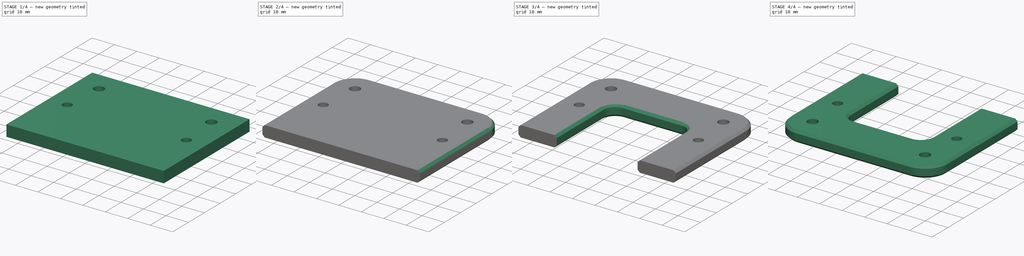
[diagram: build sequence overview — one tinted view per stage of 4, left to right]
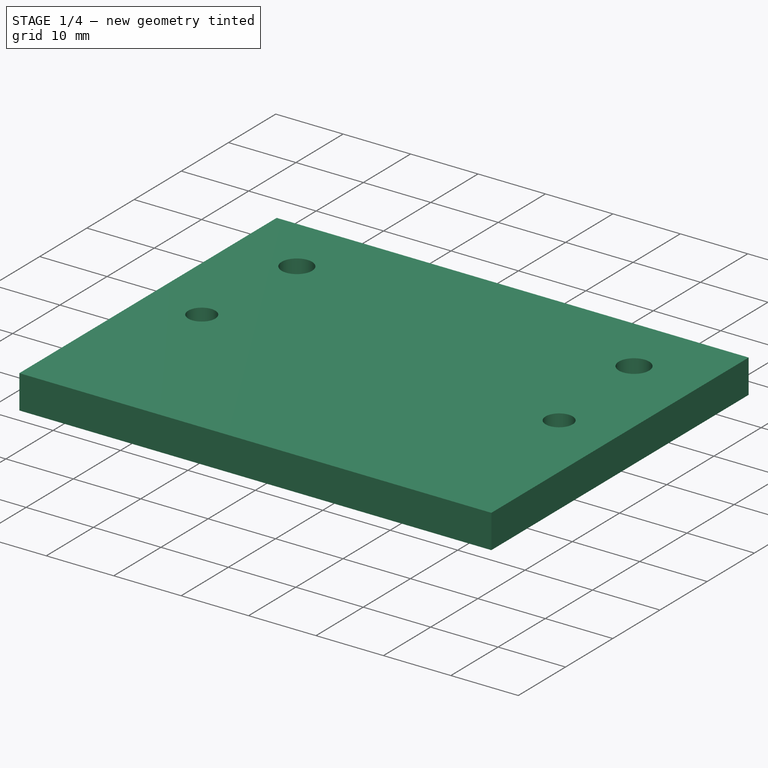
[diagram: stage 1 of 4 — iso view after this stage's code; geometry added in this stage tinted green]
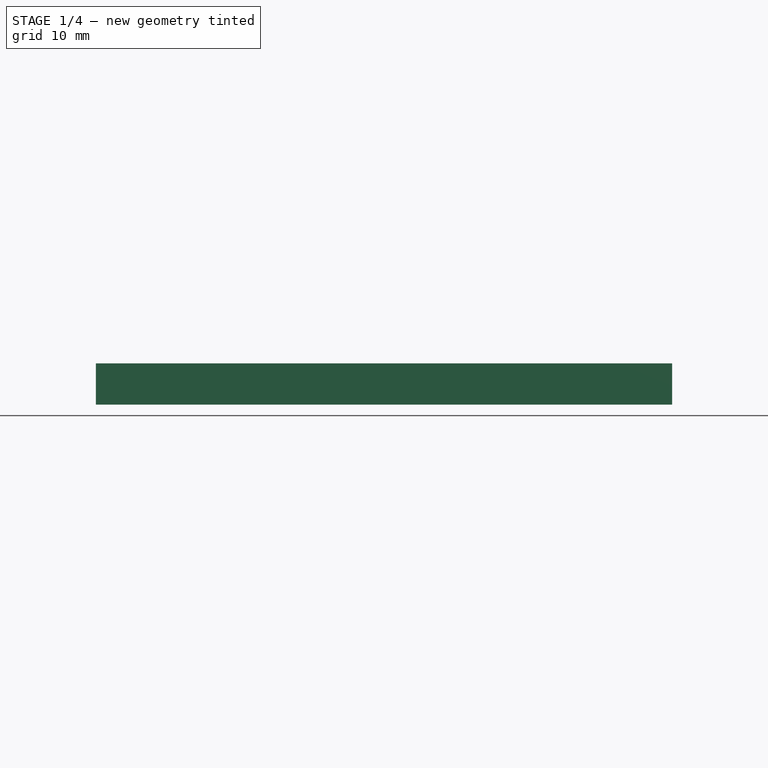
[diagram: stage 1 of 4 — front view after this stage's code; geometry added in this stage tinted green]
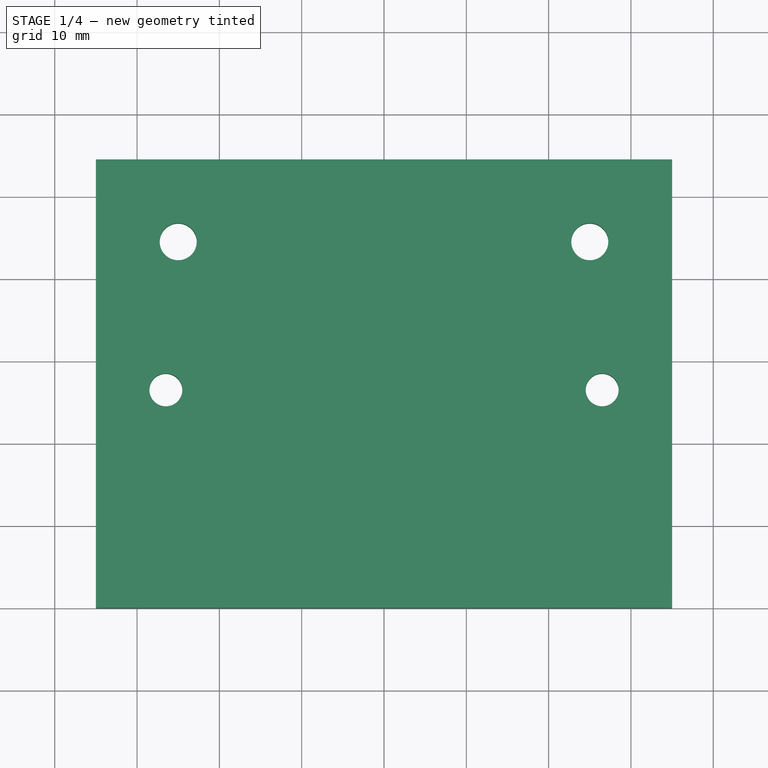
[diagram: stage 1 of 4 — top view after this stage's code; geometry added in this stage tinted green]
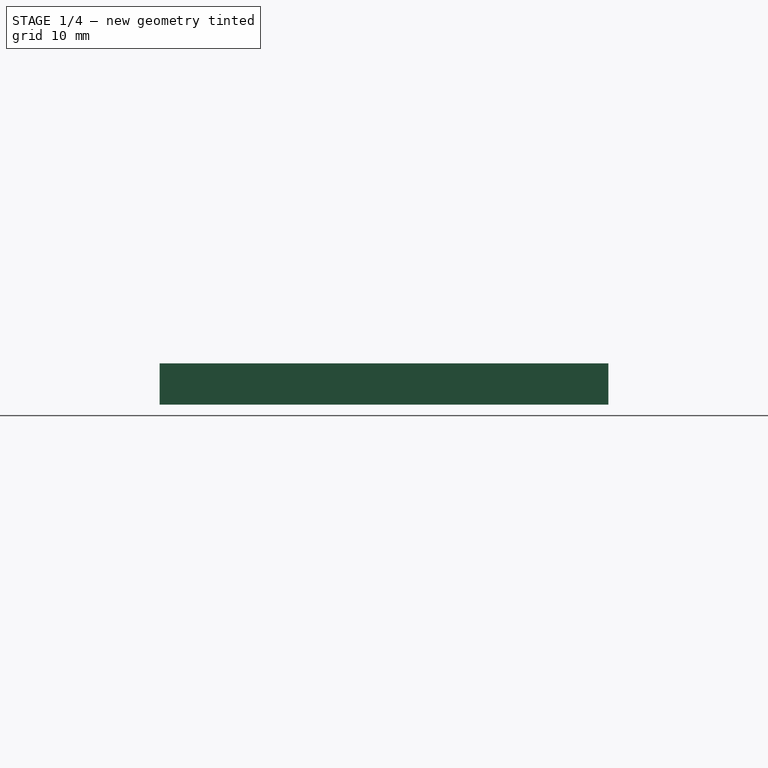
[diagram: stage 1 of 4 — right view after this stage's code; geometry added in this stage tinted green]
FCSTD DOCUMENT  (FreeCAD 0.21R33694 (Git))
Label: Hokuyo-Mount
License: All rights reserved
LicenseURL: http://en.wikipedia.org/wiki/All_rights_reserved
objects: Sketcher::SketchObject×3, PartDesign::Pocket×2, PartDesign::Fillet×2, PartDesign::Chamfer×2, PartDesign::Pad×1, PartDesign::Body×1, PartDesign::FeatureBase×1, Part::Mirroring×1, App::Part×1
note: 20 computed .brp shape members not serialized (recipe doc carries the construction recipe); baked Part::Feature solids carry a one-line shape summary decoded from their .brp

FEATURE [Sketcher::SketchObject] Sketch
  FullyConstrained = true
  MapMode = 5
  Support = -> [XY_Plane001]
  sketch-geometry (13):
    g0: LineSegment StartX=0 StartY=0 StartZ=0 EndX=35 EndY=0 EndZ=0
    g1: LineSegment StartX=35 StartY=0 StartZ=0 EndX=35 EndY=54.5 EndZ=0
    g2: LineSegment StartX=35 StartY=54.5 StartZ=0 EndX=-35 EndY=54.5 EndZ=0
    g3: LineSegment StartX=-35 StartY=54.5 StartZ=0 EndX=-35 EndY=0 EndZ=0
    g4: LineSegment StartX=-35 StartY=0 StartZ=0 EndX=0 EndY=0 EndZ=0
    g5: LineSegment StartX=-25 StartY=1.1e-15 StartZ=0 EndX=-25 EndY=44.5 EndZ=0
    g6: LineSegment StartX=25 StartY=-1.7e-15 StartZ=0 EndX=25 EndY=44.5 EndZ=0
    g7: LineSegment StartX=25 StartY=44.5 StartZ=0 EndX=25 EndY=54.5 EndZ=0
    g8: LineSegment StartX=25 StartY=44.5 StartZ=0 EndX=35 EndY=44.5 EndZ=0
    g9: LineSegment StartX=-25 StartY=44.5 StartZ=0 EndX=-25 EndY=54.5 EndZ=0
    g10: LineSegment StartX=-25 StartY=44.5 StartZ=0 EndX=-35 EndY=44.5 EndZ=0
    g11: Circle CenterX=-25 CenterY=44.5 CenterZ=0 NormalX=0 NormalY=0 NormalZ=1 AngleXU=0 Radius=2.25
    g12: Circle CenterX=25 CenterY=44.5 CenterZ=0 NormalX=0 NormalY=0 NormalZ=1 AngleXU=0 Radius=2.25
  constraints (38):
    c: Coincident(g-1,g0)
    c: PointOnObject(g0,g-1)
    c: Coincident(g0,g1)
    c: Vertical(g1)
    c: Coincident(g1,g2)
    c: Horizontal(g2)
    c: Coincident(g2,g3)
    c: PointOnObject(g3,g-1)
    c: Vertical(g3)
    c: Coincident(g3,g4)
    c: Coincident(g4,g0)
    c: PointOnObject(g5,g4)
    c: Vertical(g5)
    c: PointOnObject(g6,g0)
    c: Vertical(g6)
    c: Coincident(g7,g6)
    c: PointOnObject(g7,g2)
    c: Vertical(g7)
    c: Coincident(g8,g6)
    c: PointOnObject(g8,g1)
    c: Horizontal(g8)
    c: Coincident(g9,g5)
    c: PointOnObject(g9,g2)
    c: Coincident(g10,g5)
    c: PointOnObject(g10,g3)
    c: Horizontal(g10)
    c: Vertical(g9)
    c: Equal(g8,g10)
    c: Equal(g9,g7)
    c: Distance(g6) = 44.5
    c: Distance(g7) = 10
    c: Distance(g8) = 10
    c: Coincident(g11,g5)
    c: Coincident(g12,g6)
    c: Equal(g11,g12)
    c: Diameter(g12) = 4.5
    c: Equal(g4,g0)
    c: Distance(g2) = 70
FEATURE [PartDesign::Pad] Pad
  Direction = (1,1,1)
  Length = 5
  Length2 = 100
  Profile = -> Sketch
  Type = 0
FEATURE [Sketcher::SketchObject] Sketch001
  FullyConstrained = true
  MapMode = 5
  Placement = pos=(0,0,5) rot=(0,0,1;0rad)
  Support = -> [Pad]
  sketch-geometry (6):
    g0: LineSegment StartX=26.5 StartY=0 StartZ=0 EndX=26.5 EndY=26.5 EndZ=0
    g1: LineSegment StartX=26.5 StartY=26.5 StartZ=0 EndX=0 EndY=26.5 EndZ=0
    g2: LineSegment StartX=0 StartY=26.5 StartZ=0 EndX=-26.5 EndY=26.5 EndZ=0
    g3: LineSegment StartX=-26.5 StartY=26.5 StartZ=0 EndX=-26.5 EndY=0 EndZ=0
    g4: Circle CenterX=-26.5 CenterY=26.5 CenterZ=0 NormalX=0 NormalY=0 NormalZ=1 AngleXU=0 Radius=2
    g5: Circle CenterX=26.5 CenterY=26.5 CenterZ=0 NormalX=0 NormalY=0 NormalZ=1 AngleXU=0 Radius=2
  constraints (17):
    c: PointOnObject(g0,g-1)
    c: Vertical(g0)
    c: Coincident(g0,g1)
    c: PointOnObject(g1,g-2)
    c: Horizontal(g1)
    c: Coincident(g1,g2)
    c: Horizontal(g2)
    c: Coincident(g2,g3)
    c: PointOnObject(g3,g-1)
    c: Vertical(g3)
    c: Equal(g1,g2)
    c: Equal(g2,g3)
    c: Distance(g0) = 26.5
    c: Coincident(g4,g2)
    c: Coincident(g5,g0)
    c: Equal(g4,g5)
    c: Diameter(g5) = 4
FEATURE [PartDesign::Pocket] Pocket
  BaseFeature = -> Pad
  Direction = (1,1,1)
  Length = 5
  Length2 = 100
  Profile = -> Sketch001
  Type = 1
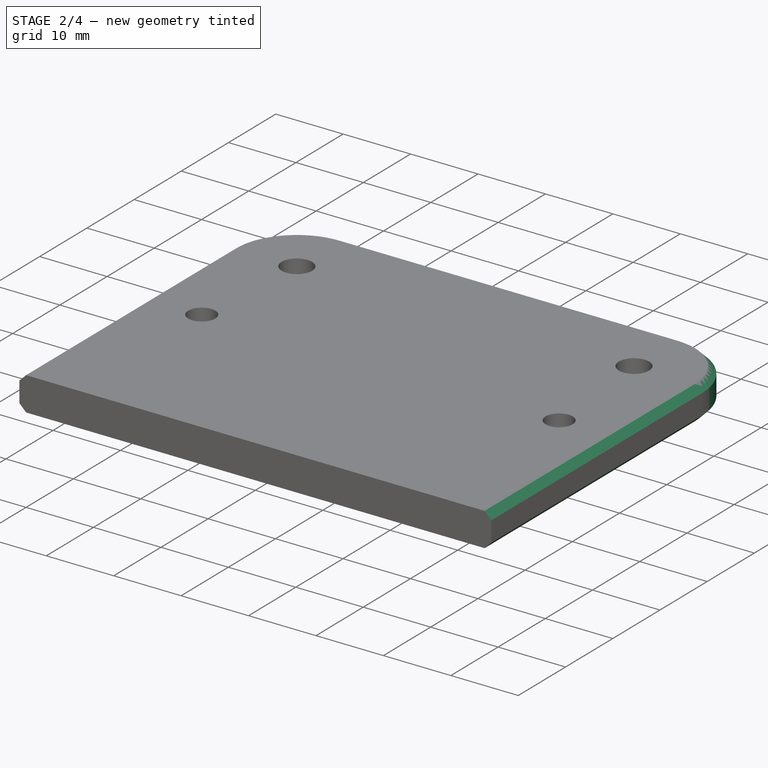
[diagram: stage 2 of 4 — iso view after this stage's code; geometry added in this stage tinted green]
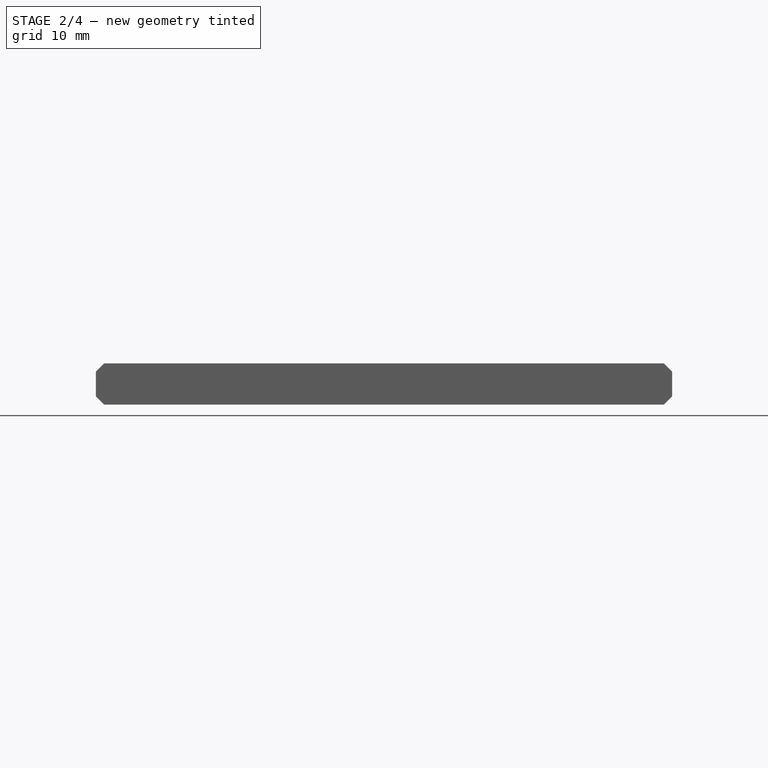
[diagram: stage 2 of 4 — front view after this stage's code; geometry added in this stage tinted green]
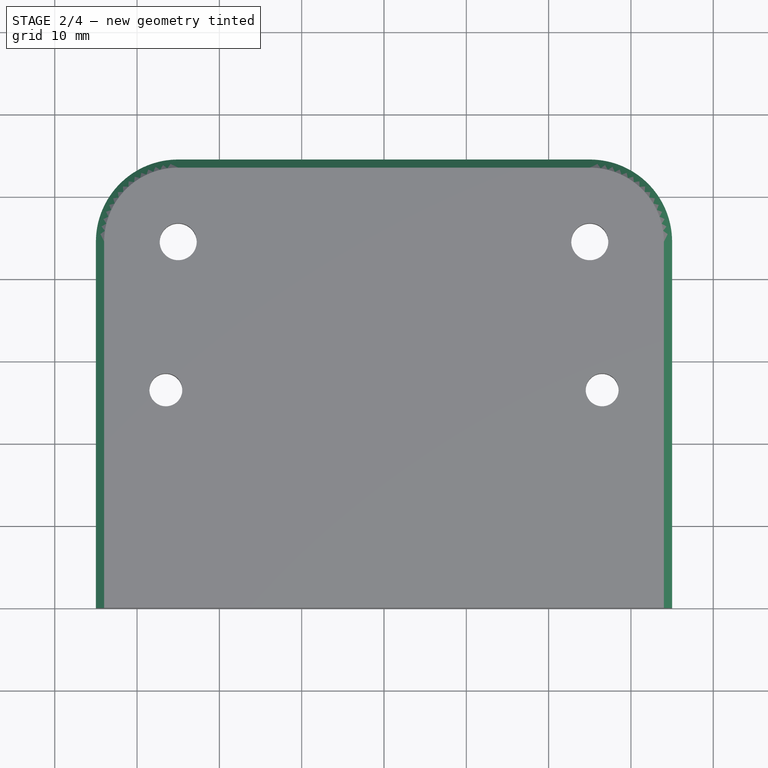
[diagram: stage 2 of 4 — top view after this stage's code; geometry added in this stage tinted green]
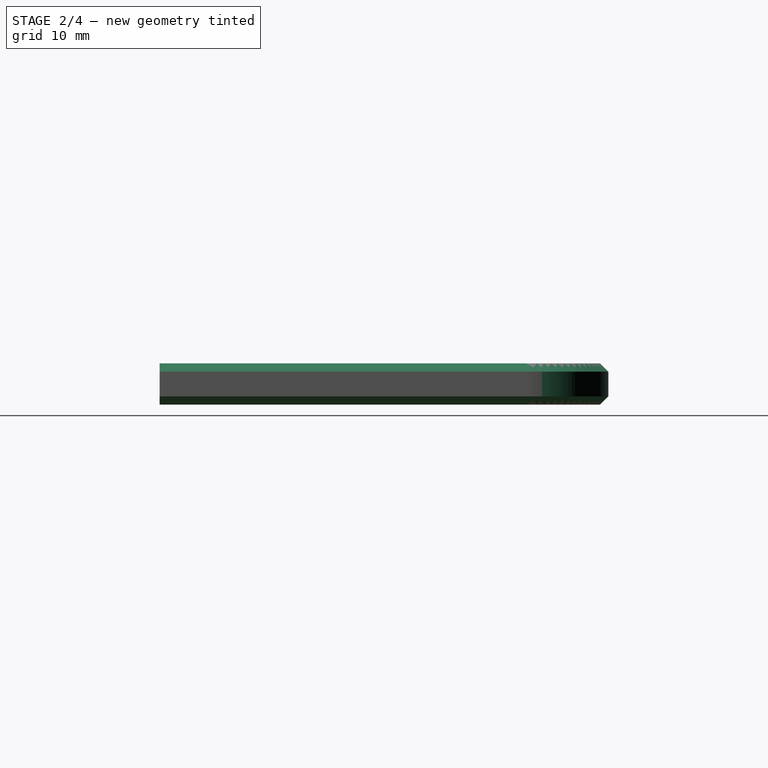
[diagram: stage 2 of 4 — right view after this stage's code; geometry added in this stage tinted green]
FEATURE [PartDesign::Fillet] Fillet
  Base = -> Pocket [Edge8,Edge23]
  BaseFeature = -> Pocket
  Radius = 10
  SupportTransform = false
  UseAllEdges = false
FEATURE [PartDesign::Chamfer] Chamfer
  Angle = 45
  Base = -> Fillet [Edge19,Edge7]
  BaseFeature = -> Fillet
  ChamferType = 0
  FlipDirection = false
  Size = 1
  Size2 = 1
  SupportTransform = false
  UseAllEdges = false
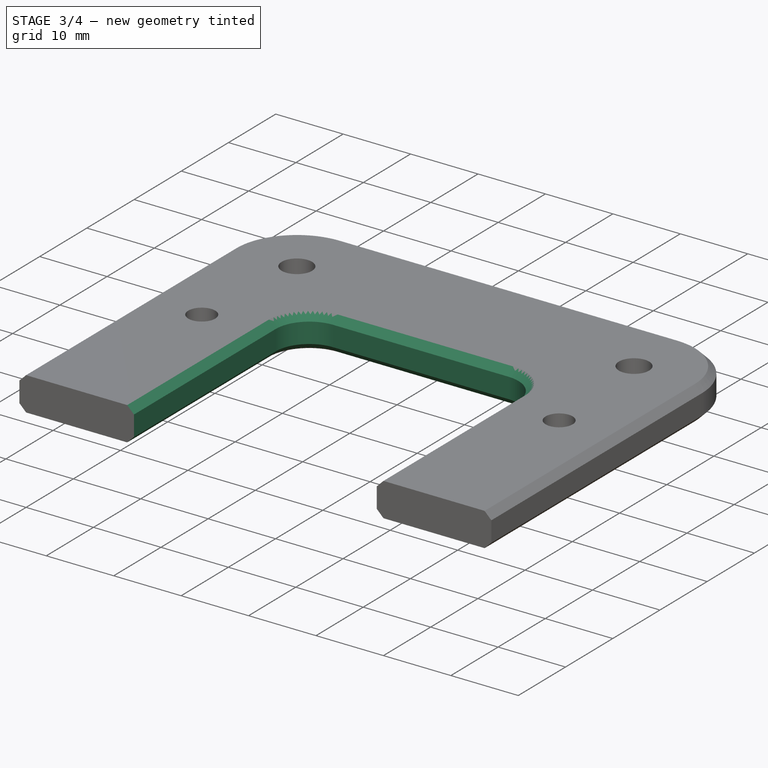
[diagram: stage 3 of 4 — iso view after this stage's code; geometry added in this stage tinted green]
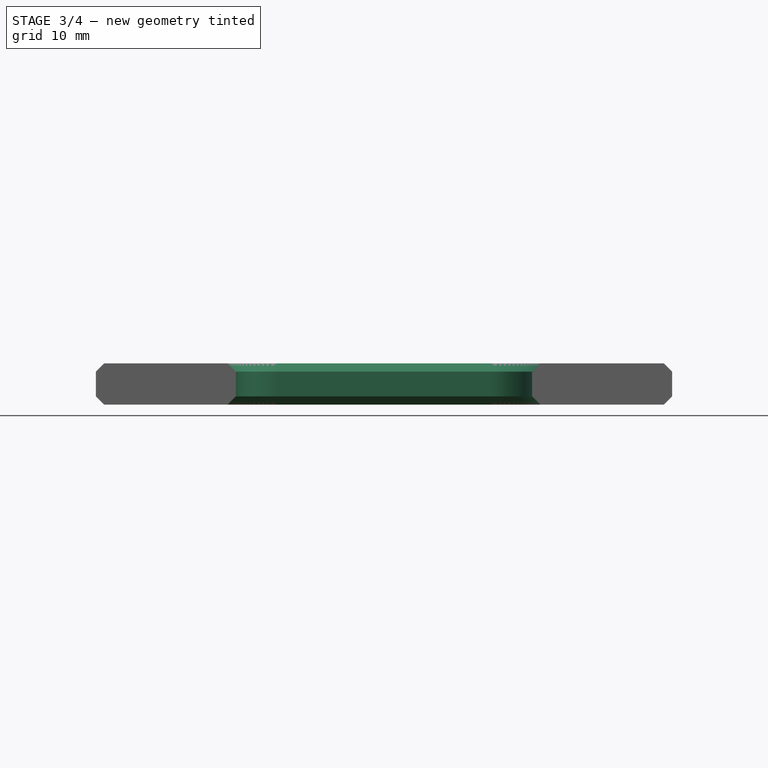
[diagram: stage 3 of 4 — front view after this stage's code; geometry added in this stage tinted green]
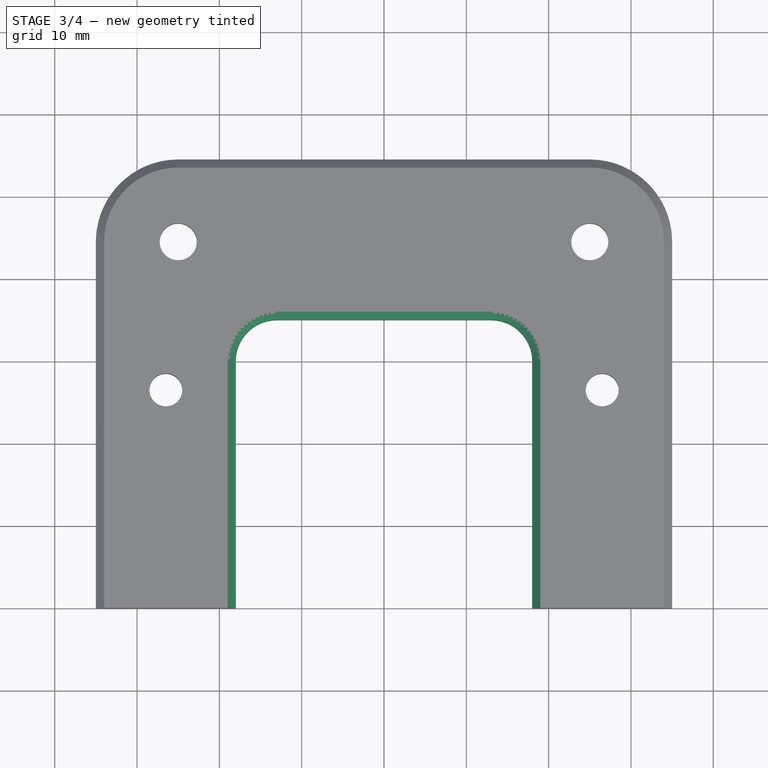
[diagram: stage 3 of 4 — top view after this stage's code; geometry added in this stage tinted green]
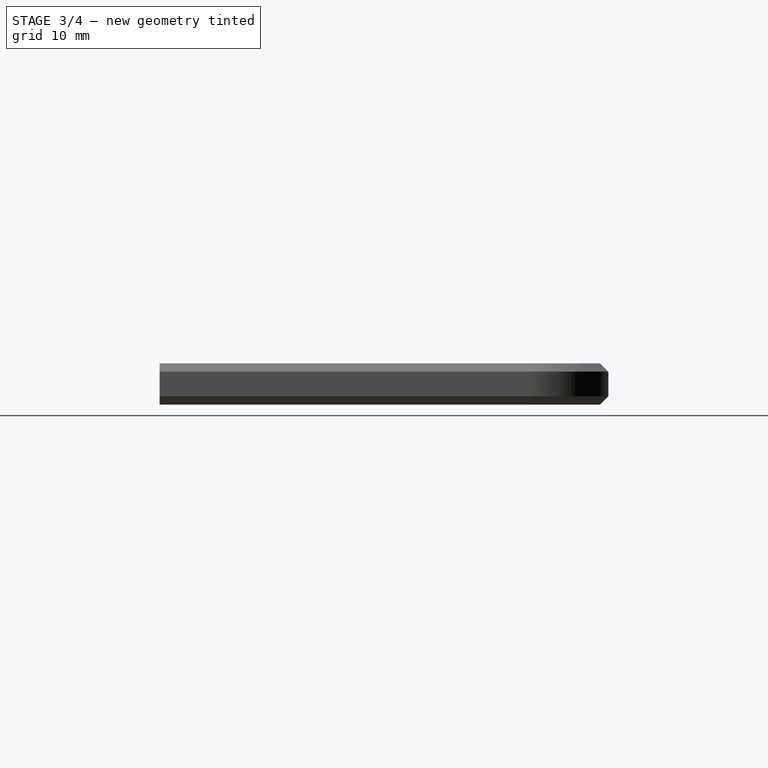
[diagram: stage 3 of 4 — right view after this stage's code; geometry added in this stage tinted green]
FEATURE [Sketcher::SketchObject] Sketch002
  FullyConstrained = true
  MapMode = 5
  Placement = pos=(0,0,5) rot=(0,0,1;0rad)
  Support = -> [Chamfer]
  sketch-geometry (5):
    g0: LineSegment StartX=-18 StartY=0 StartZ=0 EndX=-18 EndY=35 EndZ=0
    g1: LineSegment StartX=-18 StartY=35 StartZ=0 EndX=18 EndY=35 EndZ=0
    g2: LineSegment StartX=18 StartY=35 StartZ=0 EndX=18 EndY=0 EndZ=0
    g3: LineSegment StartX=18 StartY=0 StartZ=0 EndX=0 EndY=0 EndZ=0
    g4: LineSegment StartX=0 StartY=0 StartZ=0 EndX=-18 EndY=0 EndZ=0
  constraints (14):
    c: PointOnObject(g0,g-1)
    c: Vertical(g0)
    c: Coincident(g0,g1)
    c: Horizontal(g1)
    c: Coincident(g1,g2)
    c: PointOnObject(g2,g-1)
    c: Vertical(g2)
    c: Coincident(g2,g3)
    c: Coincident(g3,g-1)
    c: Coincident(g3,g4)
    c: Coincident(g4,g0)
    c: Equal(g4,g3)
    c: Distance(g1) = 36
    c: Distance(g0) = 35
FEATURE [PartDesign::Pocket] Pocket001
  BaseFeature = -> Chamfer
  Direction = (1,1,1)
  Length = 5
  Length2 = 100
  Profile = -> Sketch002
  Type = 0
FEATURE [PartDesign::Fillet] Fillet001
  Base = -> Pocket001 [Edge52,Edge46]
  BaseFeature = -> Pocket001
  Radius = 5
  SupportTransform = false
  UseAllEdges = false
FEATURE [PartDesign::Chamfer] Chamfer001
  Angle = 45
  Base = -> Fillet001 [Edge26,Edge4]
  BaseFeature = -> Fillet001
  ChamferType = 0
  FlipDirection = false
  Size = 1
  Size2 = 1
  SupportTransform = false
  UseAllEdges = false
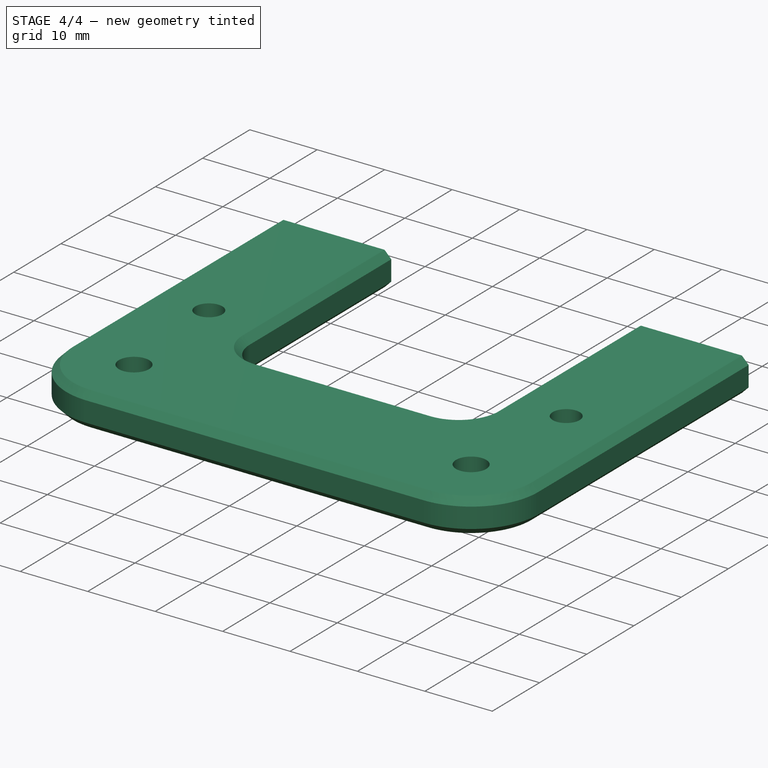
[diagram: stage 4 of 4 — iso view after this stage's code; geometry added in this stage tinted green]
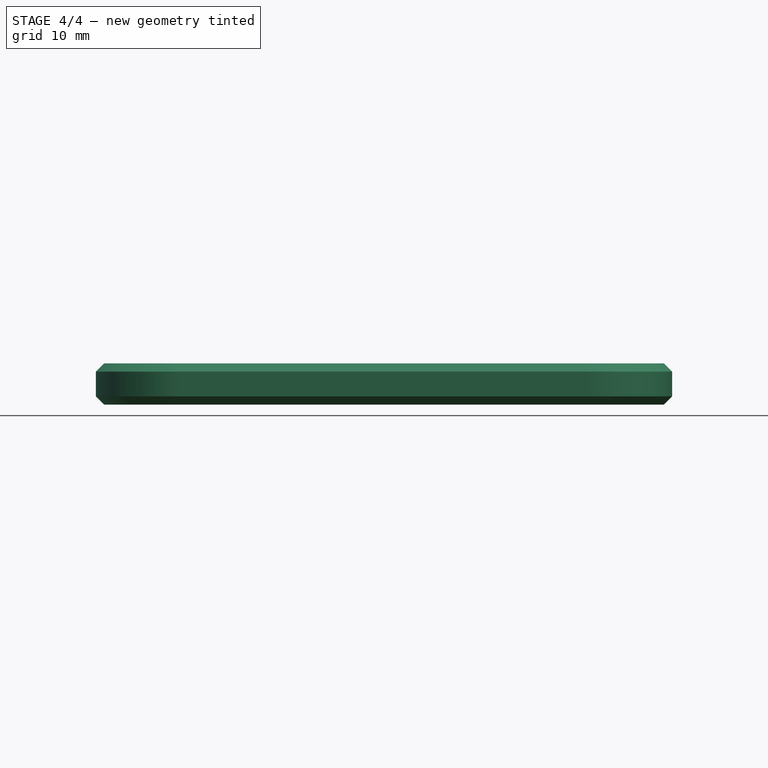
[diagram: stage 4 of 4 — front view after this stage's code; geometry added in this stage tinted green]
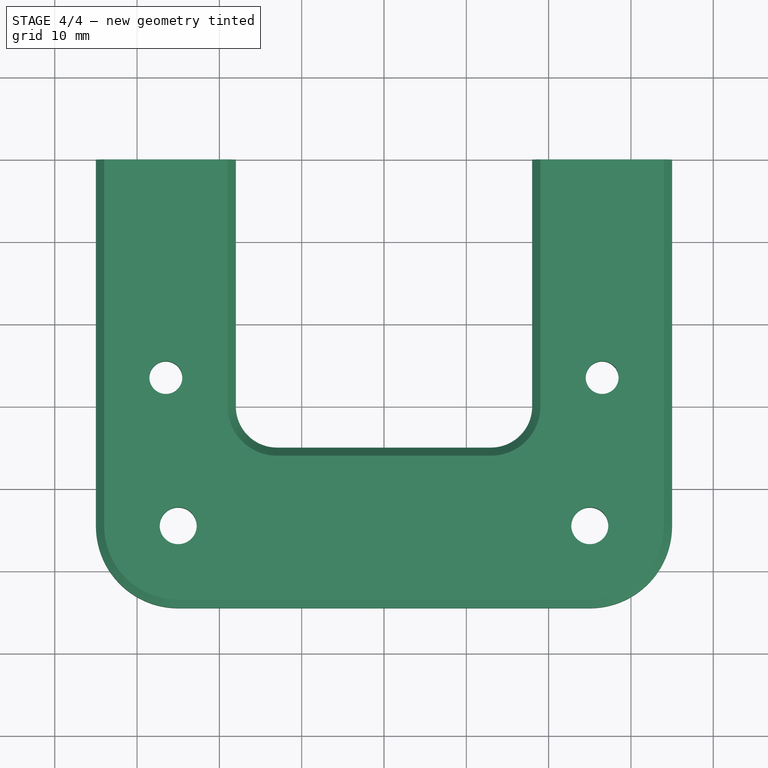
[diagram: stage 4 of 4 — top view after this stage's code; geometry added in this stage tinted green]
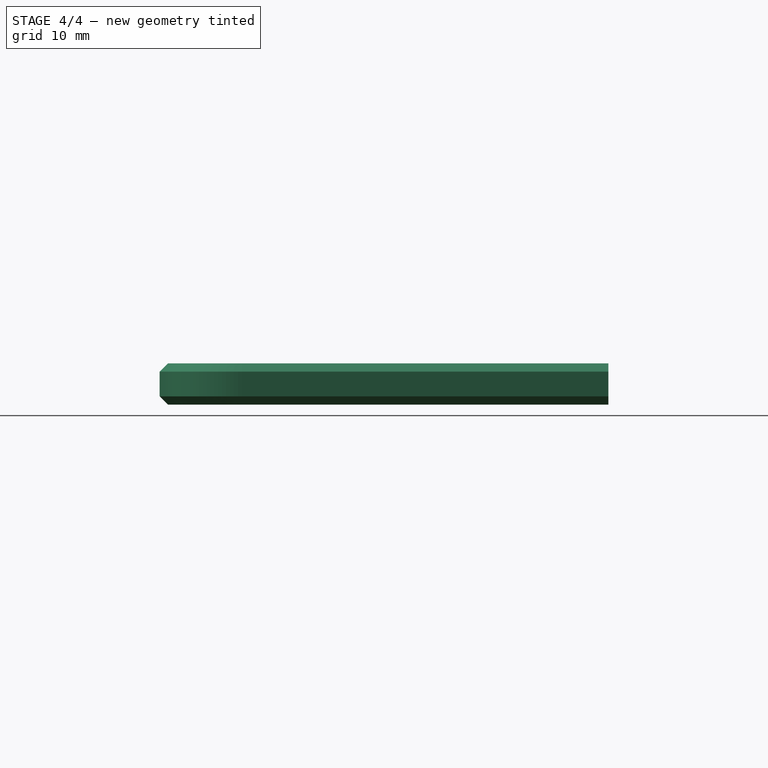
[diagram: stage 4 of 4 — right view after this stage's code; geometry added in this stage tinted green]
FEATURE [PartDesign::Body] Body
  Group = -> [Sketch,Pad,Sketch001,Pocket,Fillet,Chamfer,Sketch002,Pocket001,Fillet001,Chamfer001]
  Origin = -> Origin001
  Tip = -> Chamfer001
FEATURE [PartDesign::FeatureBase] Clone
  BaseFeature = -> Body
FEATURE [Part::Mirroring] Part__Mirroring  label="Clone (Mirror #1)"
  Base = (0,0,0)
  Normal = (0,1,0)
  Source = -> Clone
FEATURE [App::Part] Part
  Group = -> [Body,Clone,Part__Mirroring]
  Origin = -> Origin
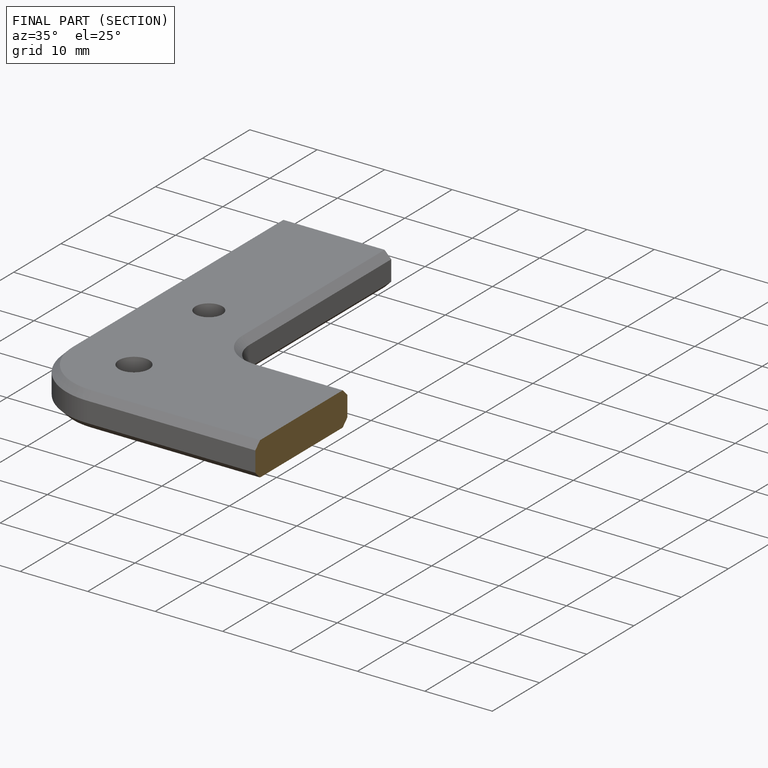
[diagram: finished part — half-section view (interior)]
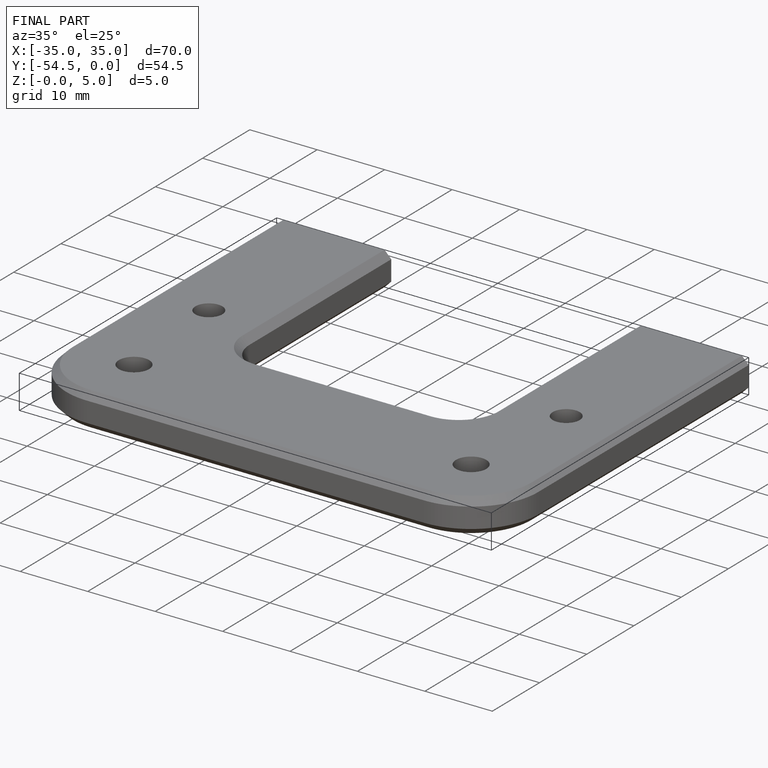
[diagram: finished part — iso view with bounding-box wireframe]
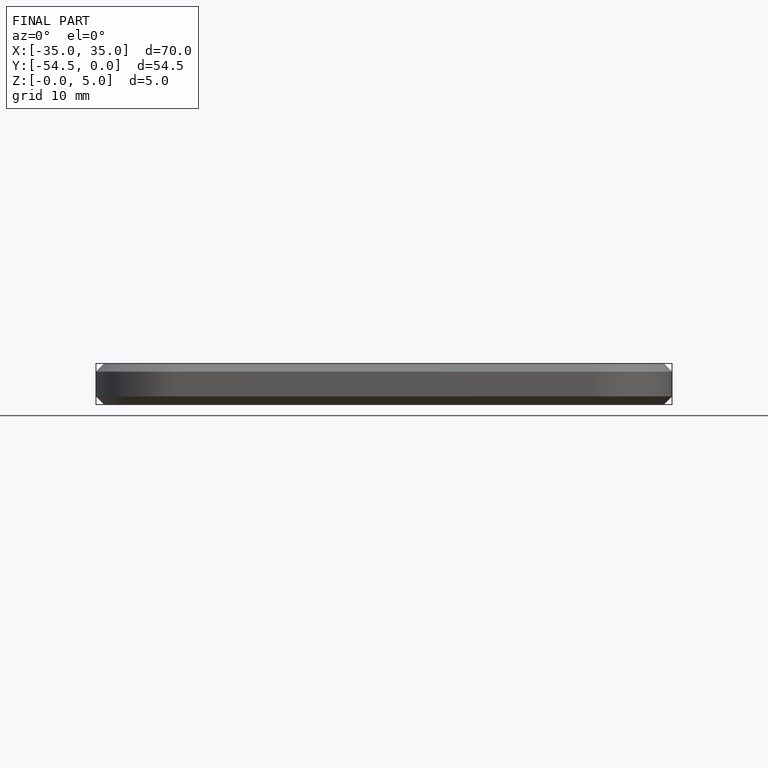
[diagram: finished part — front view with bounding-box wireframe]
